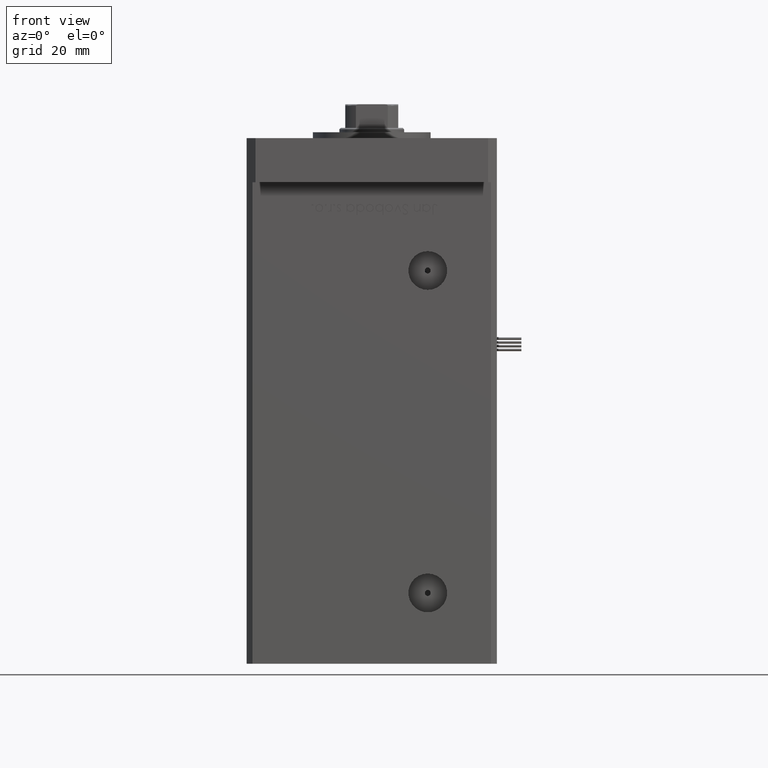
[diagram: clean part render]
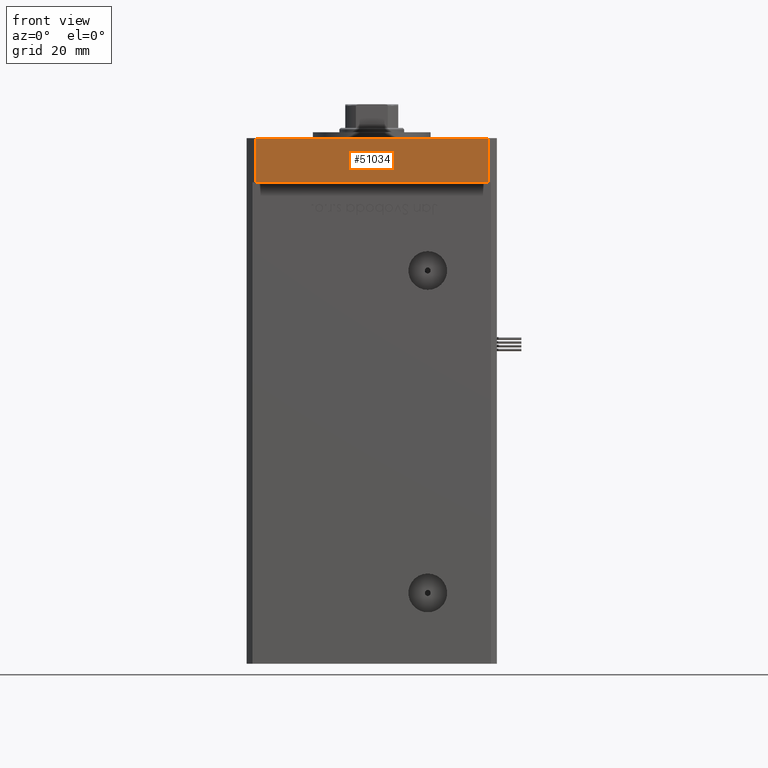
[diagram: same view with one face highlighted and labeled with its STEP entity id]
A machine part, front view. The second image highlights one B-rep face of the part: STEP entity #51034.
In plain terms, the highlighted planar face has unit normal (-0, 1, 0).
Its self-contained STEP definition (entity closure, byte-faithful):
#1398 = PLANE ( 'NONE',  #50278 ) ;
#4350 = CARTESIAN_POINT ( 'NONE',  ( -39.50000000000000000, -65.00000000000000000, 15.00000000000000000 ) ) ;
#5077 = VECTOR ( 'NONE', #14248, 1000.000000000000000 ) ;
#5937 = CARTESIAN_POINT ( 'NONE',  ( -39.50000000000000000, -65.00000000000000000, 15.00000000000000000 ) ) ;
#8166 = EDGE_LOOP ( 'NONE', ( #43896, #51648, #49974, #9729 ) ) ;
#8716 = CARTESIAN_POINT ( 'NONE',  ( -39.50000000000000000, -65.00000000000000000, 0.000000000000000000 ) ) ;
#9707 = DIRECTION ( 'NONE',  ( -1.405345600791337191E-15, 1.000000000000000000, 0.000000000000000000 ) ) ;
#9729 = ORIENTED_EDGE ( 'NONE', *, *, #35327, .T. ) ;
#12090 = LINE ( 'NONE', #16923, #44004 ) ;
#12892 = CARTESIAN_POINT ( 'NONE',  ( 39.50000000000001421, -64.99999999999988631, 15.00000000000000000 ) ) ;
#14248 = DIRECTION ( 'NONE',  ( -0.000000000000000000, -0.000000000000000000, -1.000000000000000000 ) ) ;
#16923 = CARTESIAN_POINT ( 'NONE',  ( 39.50000000000001421, -64.99999999999988631, 15.00000000000000000 ) ) ;
#17999 = FACE_OUTER_BOUND ( 'NONE', #8166, .T. ) ;
#18554 = CARTESIAN_POINT ( 'NONE',  ( -39.50000000000000000, -65.00000000000000000, 15.00000000000000000 ) ) ;
#21582 = CARTESIAN_POINT ( 'NONE',  ( -39.50000000000000000, -65.00000000000000000, 0.000000000000000000 ) ) ;
#21914 = EDGE_CURVE ( 'NONE', #47293, #31598, #12090, .T. ) ;
#22029 = CARTESIAN_POINT ( 'NONE',  ( -39.50000000000000000, -65.00000000000000000, 15.00000000000000000 ) ) ;
#22310 = DIRECTION ( 'NONE',  ( -1.000000000000000000, -1.405345600791337191E-15, 0.000000000000000000 ) ) ;
#22777 = VERTEX_POINT ( 'NONE', #8716 ) ;
#25304 = LINE ( 'NONE', #21582, #34681 ) ;
#27702 = LINE ( 'NONE', #5937, #5077 ) ;
#29537 = DIRECTION ( 'NONE',  ( -0.000000000000000000, -0.000000000000000000, -1.000000000000000000 ) ) ;
#31598 = VERTEX_POINT ( 'NONE', #46904 ) ;
#34681 = VECTOR ( 'NONE', #39300, 1000.000000000000000 ) ;
#35327 = EDGE_CURVE ( 'NONE', #38542, #22777, #27702, .T. ) ;
#38542 = VERTEX_POINT ( 'NONE', #18554 ) ;
#39239 = DIRECTION ( 'NONE',  ( 1.000000000000000000, 1.405345600791337191E-15, 0.000000000000000000 ) ) ;
#39300 = DIRECTION ( 'NONE',  ( 1.000000000000000000, 1.405345600791337191E-15, 0.000000000000000000 ) ) ;
#43896 = ORIENTED_EDGE ( 'NONE', *, *, #49372, .T. ) ;
#44004 = VECTOR ( 'NONE', #29537, 1000.000000000000000 ) ;
#46904 = CARTESIAN_POINT ( 'NONE',  ( 39.50000000000001421, -64.99999999999988631, 0.000000000000000000 ) ) ;
#47293 = VERTEX_POINT ( 'NONE', #12892 ) ;
#48411 = VECTOR ( 'NONE', #39239, 1000.000000000000000 ) ;
#49372 = EDGE_CURVE ( 'NONE', #22777, #31598, #25304, .T. ) ;
#49974 = ORIENTED_EDGE ( 'NONE', *, *, #50736, .F. ) ;
#50278 = AXIS2_PLACEMENT_3D ( 'NONE', #22029, #9707, #22310 ) ;
#50736 = EDGE_CURVE ( 'NONE', #38542, #47293, #56457, .T. ) ;
#51034 = ADVANCED_FACE ( 'NONE', ( #17999 ), #1398, .F. ) ;
#51648 = ORIENTED_EDGE ( 'NONE', *, *, #21914, .F. ) ;
#56457 = LINE ( 'NONE', #4350, #48411 ) ;